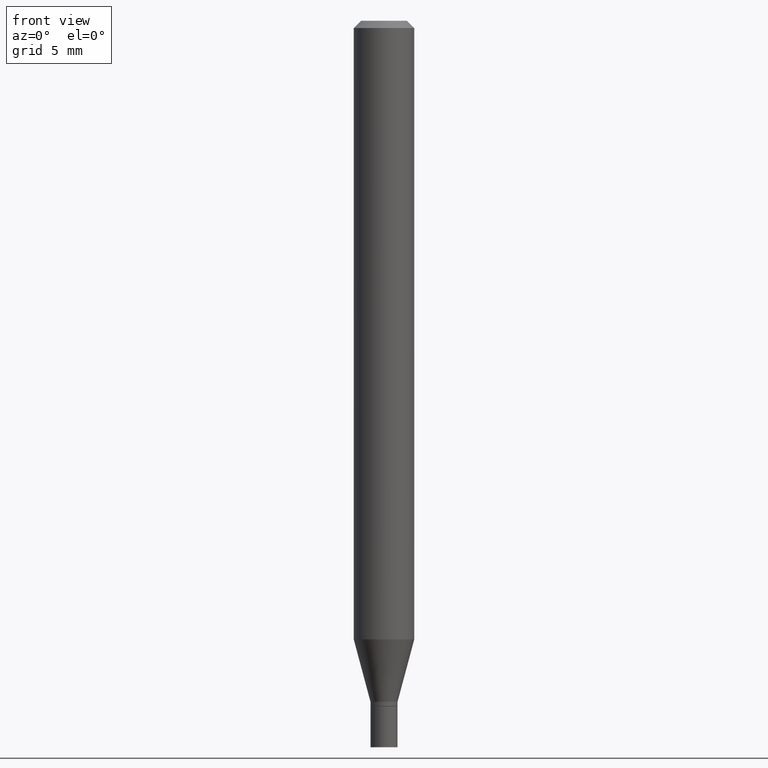
[diagram: clean part render]
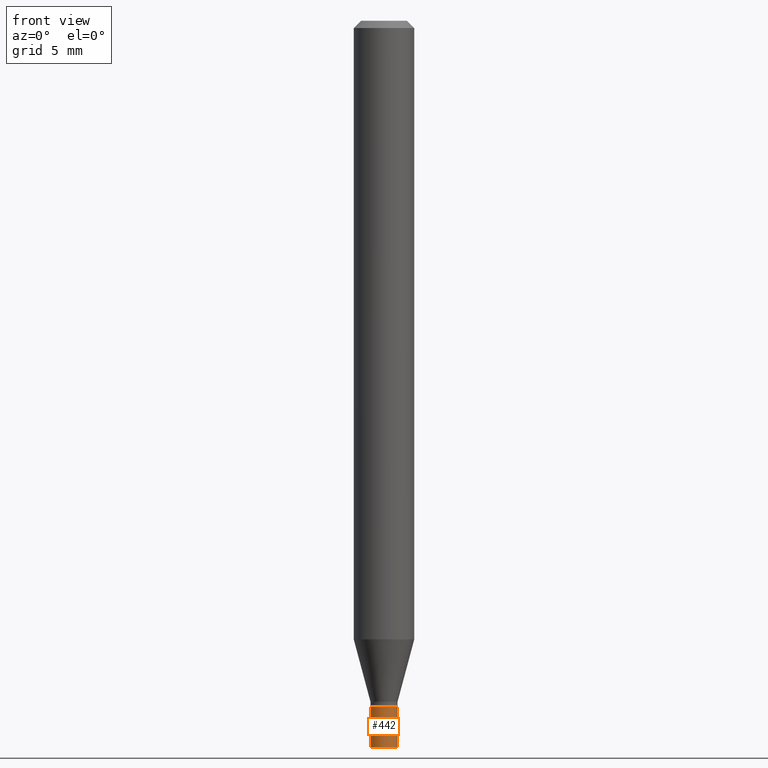
[diagram: same view with one face highlighted and labeled with its STEP entity id]
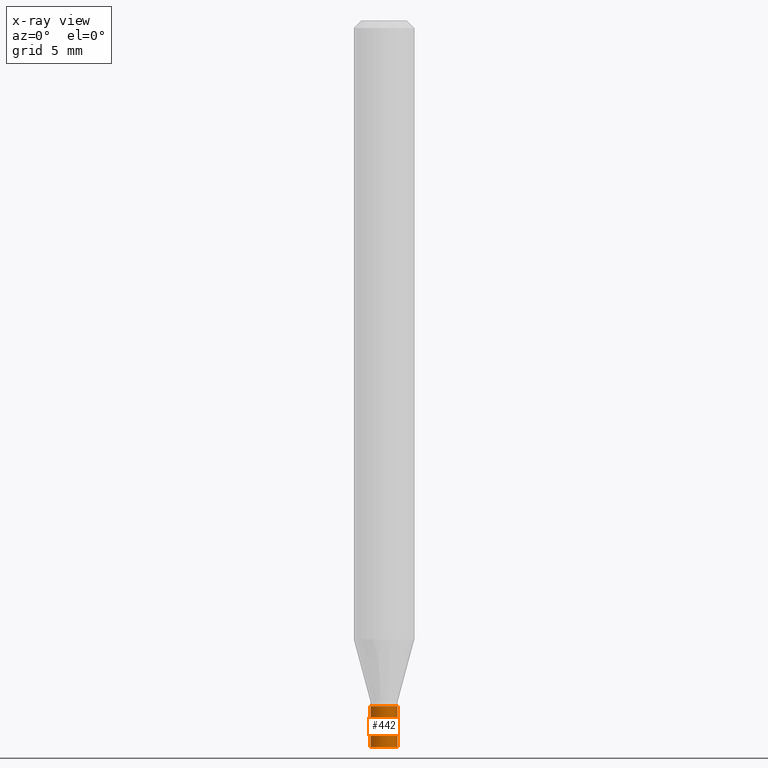
[diagram: x-ray of the same camera — body ghosted, the highlighted face saturated]
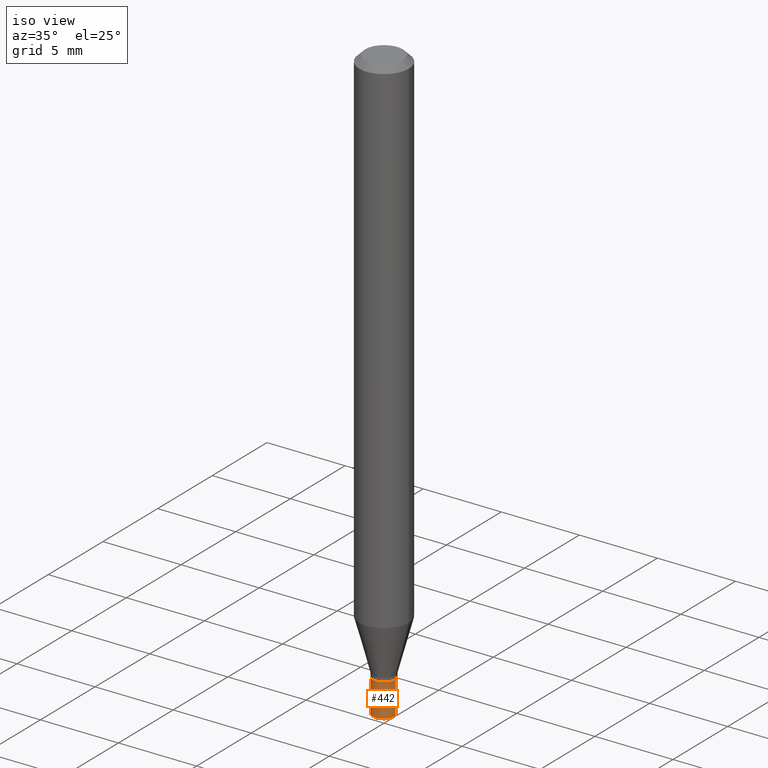
[diagram: same view with one face highlighted and labeled with its STEP entity id]
A machine part, front view. The second image highlights one B-rep face of the part: STEP entity #442.
The next image is the same camera in x-ray: the body ghosted, the highlighted face saturated — about 0% of this face is hidden behind the body in this view.
A second angle (iso view) of the same face is appended — the face is thin or edge-on in the first view.
In plain terms, the highlighted cylindrical surface (edge-blend (fillet) strip) has radius 0.7112 mm, axis along (-0, 0, 1).
Its self-contained STEP definition (entity closure, byte-faithful):
#5 = VECTOR ( 'NONE', #147, 39.37007874015748143 ) ;
#52 = VECTOR ( 'NONE', #194, 39.37007874015748143 ) ;
#54 = CARTESIAN_POINT ( 'NONE',  ( 0.02800000000000000405, -5.432744963239933676E-15, -1.500000000000000222 ) ) ;
#57 = ORIENTED_EDGE ( 'NONE', *, *, #108, .F. ) ;
#69 = ORIENTED_EDGE ( 'NONE', *, *, #389, .T. ) ;
#70 = VERTEX_POINT ( 'NONE', #212 ) ;
#75 = CYLINDRICAL_SURFACE ( 'NONE', #371, 0.02800000000000000405 ) ;
#77 = DIRECTION ( 'NONE',  ( 1.000000000000000000, -6.982962677686266711E-15, 4.876176775795935232E-29 ) ) ;
#108 = EDGE_CURVE ( 'NONE', #70, #191, #405, .T. ) ;
#134 = ORIENTED_EDGE ( 'NONE', *, *, #302, .F. ) ;
#143 = AXIS2_PLACEMENT_3D ( 'NONE', #416, #409, #370 ) ;
#145 = CARTESIAN_POINT ( 'NONE',  ( -0.02800000000000000405, -4.891627826020478915E-15, -1.500000000000000222 ) ) ;
#146 = CARTESIAN_POINT ( 'NONE',  ( 0.02800000000000000405, -5.139460530777110033E-15, -1.416000000000000147 ) ) ;
#147 = DIRECTION ( 'NONE',  ( -2.445468806185136877E-29, 3.491481338843145188E-15, 1.000000000000000000 ) ) ;
#149 = EDGE_CURVE ( 'NONE', #231, #312, #167, .T. ) ;
#167 = CIRCLE ( 'NONE', #143, 0.02800000000000000405 ) ;
#186 = AXIS2_PLACEMENT_3D ( 'NONE', #190, #305, #294 ) ;
#190 = CARTESIAN_POINT ( 'NONE',  ( 3.462783829558154044E-29, -4.943937575801894533E-15, -1.416000000000000147 ) ) ;
#191 = VERTEX_POINT ( 'NONE', #146 ) ;
#194 = DIRECTION ( 'NONE',  ( -2.445468806185136877E-29, 3.491481338843145188E-15, 1.000000000000000000 ) ) ;
#212 = CARTESIAN_POINT ( 'NONE',  ( -0.02800000000000000405, -4.891627826020478915E-15, -1.416000000000000147 ) ) ;
#231 = VERTEX_POINT ( 'NONE', #145 ) ;
#235 = ORIENTED_EDGE ( 'NONE', *, *, #149, .T. ) ;
#250 = LINE ( 'NONE', #295, #5 ) ;
#285 = CARTESIAN_POINT ( 'NONE',  ( 0.000000000000000000, 0.000000000000000000, 0.000000000000000000 ) ) ;
#294 = DIRECTION ( 'NONE',  ( 1.000000000000000000, -6.982962677686262766E-15, 0.000000000000000000 ) ) ;
#295 = CARTESIAN_POINT ( 'NONE',  ( -0.02800000000000000405, 1.989519660128280808E-16, -1.377301825271373721E-30 ) ) ;
#302 = EDGE_CURVE ( 'NONE', #231, #70, #250, .T. ) ;
#305 = DIRECTION ( 'NONE',  ( -2.445468806185136597E-29, 3.491481338843145583E-15, 1.000000000000000000 ) ) ;
#312 = VERTEX_POINT ( 'NONE', #54 ) ;
#370 = DIRECTION ( 'NONE',  ( 1.000000000000000000, -6.982962677686262766E-15, 0.000000000000000000 ) ) ;
#371 = AXIS2_PLACEMENT_3D ( 'NONE', #285, #440, #77 ) ;
#375 = LINE ( 'NONE', #454, #52 ) ;
#388 = EDGE_LOOP ( 'NONE', ( #134, #235, #69, #57 ) ) ;
#389 = EDGE_CURVE ( 'NONE', #312, #191, #375, .T. ) ;
#400 = FACE_OUTER_BOUND ( 'NONE', #388, .T. ) ;
#405 = CIRCLE ( 'NONE', #186, 0.02800000000000000405 ) ;
#409 = DIRECTION ( 'NONE',  ( -2.445468806185136597E-29, 3.491481338843145583E-15, 1.000000000000000000 ) ) ;
#416 = CARTESIAN_POINT ( 'NONE',  ( 3.668203209277704895E-29, -5.237222008264718177E-15, -1.500000000000000222 ) ) ;
#440 = DIRECTION ( 'NONE',  ( -2.445468806185136597E-29, 3.491481338843145583E-15, 1.000000000000000000 ) ) ;
#442 = ADVANCED_FACE ( 'NONE', ( #400 ), #75, .T. ) ;
#454 = CARTESIAN_POINT ( 'NONE',  ( 0.02800000000000000405, -1.955229549752154995E-16, 1.365329497222862141E-30 ) ) ;